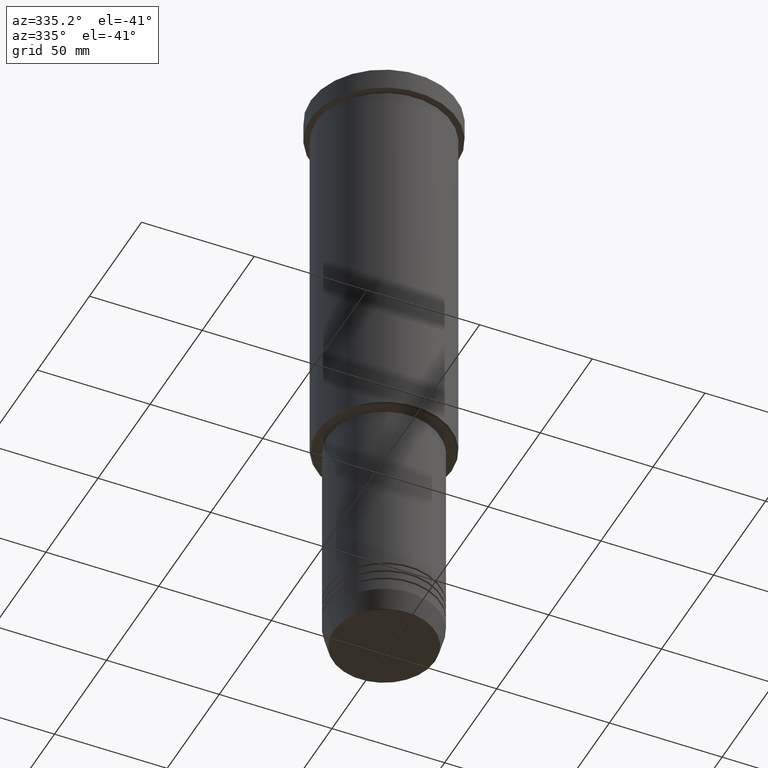
[diagram: clean part render]
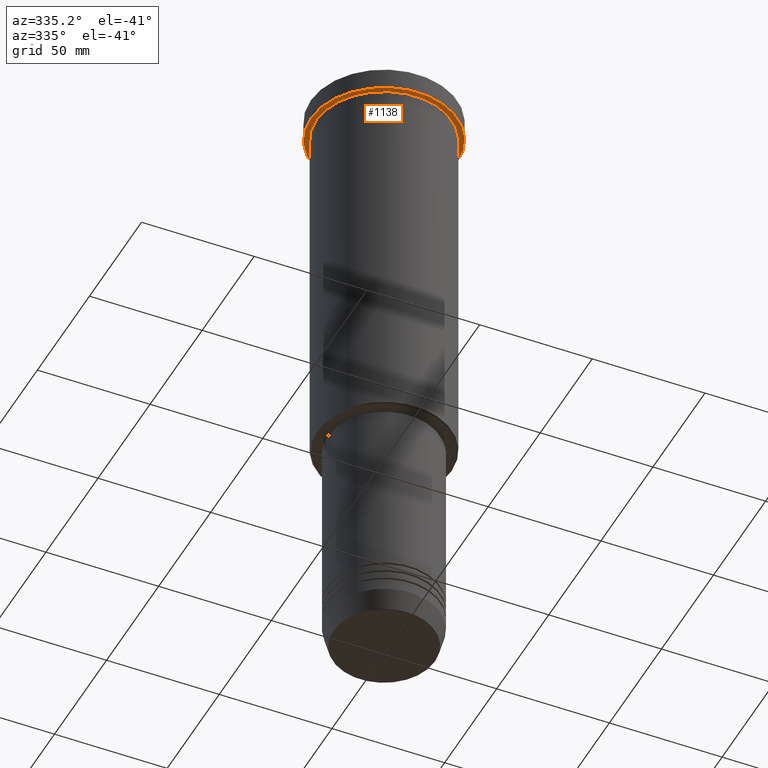
[diagram: same view with one face highlighted and labeled with its STEP entity id]
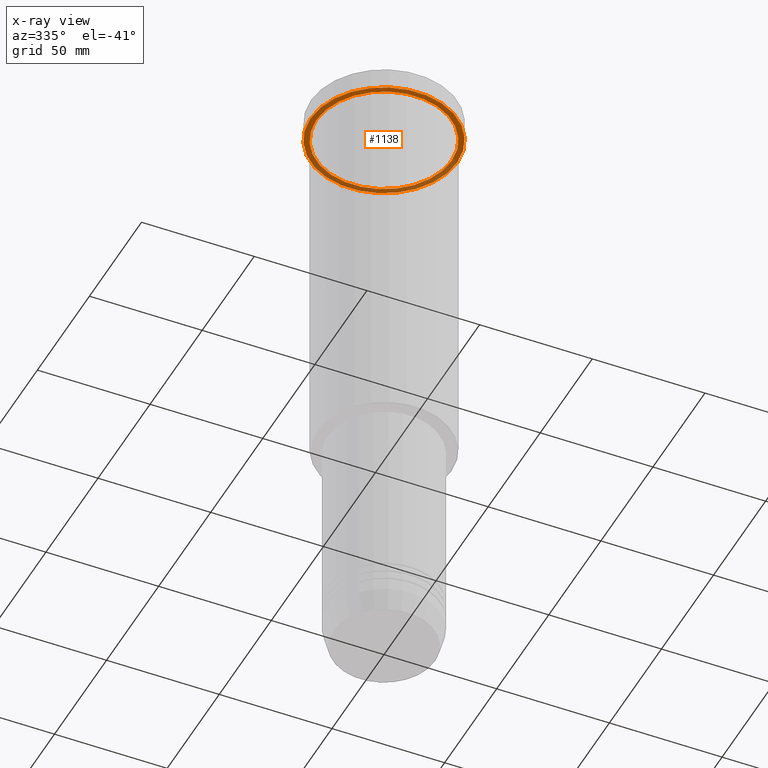
[diagram: x-ray of the same camera — body ghosted, the highlighted face saturated]
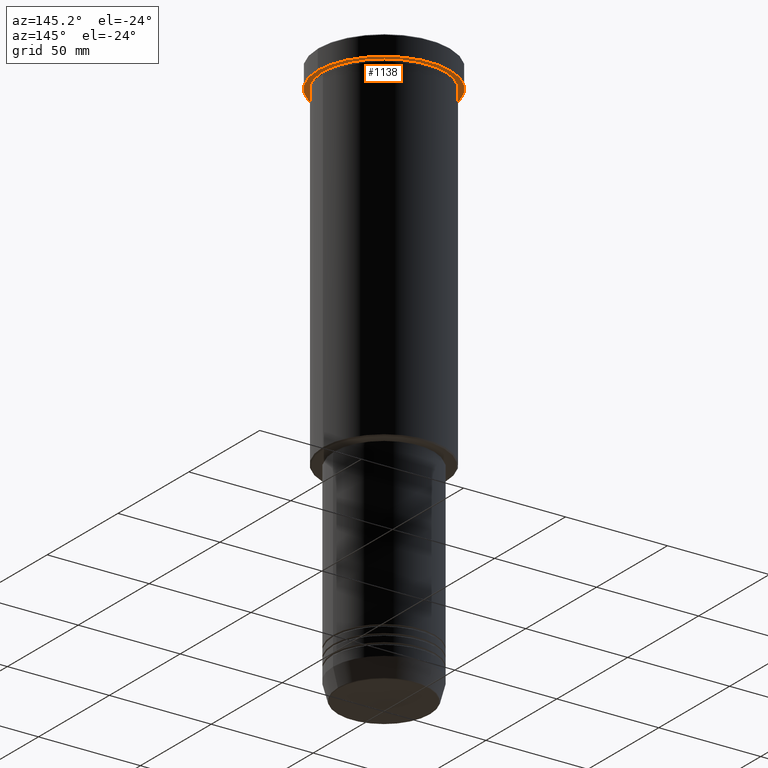
[diagram: same view with one face highlighted and labeled with its STEP entity id]
A machine part, auxiliary view. The second image highlights one B-rep face of the part: STEP entity #1138.
The next image is the same camera in x-ray: the body ghosted, the highlighted face saturated — about 37% of this face is hidden behind the body in this view.
A second angle (auxiliary view) of the same face is appended — the face is thin or edge-on in the first view.
In plain terms, the highlighted planar face has unit normal (0, 0, -1).
Its self-contained STEP definition (entity closure, byte-faithful):
#79 = CIRCLE ( 'NONE', #330, 32.50000000000000000 ) ;
#81 = EDGE_LOOP ( 'NONE', ( #456, #802 ) ) ;
#88 = VERTEX_POINT ( 'NONE', #1025 ) ;
#100 = DIRECTION ( 'NONE',  ( 1.000000000000000000, 0.000000000000000000, 0.000000000000000000 ) ) ;
#108 = CARTESIAN_POINT ( 'NONE',  ( -30.00000000000000000, 0.000000000000000000, -9.999999999999992895 ) ) ;
#130 = PLANE ( 'NONE',  #799 ) ;
#174 = EDGE_LOOP ( 'NONE', ( #913, #652 ) ) ;
#235 = DIRECTION ( 'NONE',  ( -0.000000000000000000, -0.000000000000000000, 1.000000000000000000 ) ) ;
#280 = DIRECTION ( 'NONE',  ( -0.000000000000000000, -0.000000000000000000, 1.000000000000000000 ) ) ;
#330 = AXIS2_PLACEMENT_3D ( 'NONE', #1106, #587, #943 ) ;
#356 = VERTEX_POINT ( 'NONE', #870 ) ;
#388 = CARTESIAN_POINT ( 'NONE',  ( 32.50000000000000000, 0.000000000000000000, -9.999999999999992895 ) ) ;
#400 = EDGE_CURVE ( 'NONE', #88, #718, #1157, .T. ) ;
#456 = ORIENTED_EDGE ( 'NONE', *, *, #1097, .T. ) ;
#489 = CIRCLE ( 'NONE', #1012, 32.50000000000000000 ) ;
#587 = DIRECTION ( 'NONE',  ( -0.000000000000000000, -0.000000000000000000, 1.000000000000000000 ) ) ;
#588 = DIRECTION ( 'NONE',  ( 0.000000000000000000, 0.000000000000000000, -1.000000000000000000 ) ) ;
#593 = FACE_BOUND ( 'NONE', #81, .T. ) ;
#645 = AXIS2_PLACEMENT_3D ( 'NONE', #801, #235, #1144 ) ;
#652 = ORIENTED_EDGE ( 'NONE', *, *, #963, .F. ) ;
#671 = CARTESIAN_POINT ( 'NONE',  ( 0.000000000000000000, 0.000000000000000000, -9.999999999999992895 ) ) ;
#706 = EDGE_CURVE ( 'NONE', #1031, #356, #79, .T. ) ;
#718 = VERTEX_POINT ( 'NONE', #108 ) ;
#740 = AXIS2_PLACEMENT_3D ( 'NONE', #671, #1024, #1038 ) ;
#754 = CARTESIAN_POINT ( 'NONE',  ( 0.000000000000000000, 0.000000000000000000, -9.999999999999992895 ) ) ;
#799 = AXIS2_PLACEMENT_3D ( 'NONE', #1122, #588, #1142 ) ;
#801 = CARTESIAN_POINT ( 'NONE',  ( 0.000000000000000000, 0.000000000000000000, -9.999999999999992895 ) ) ;
#802 = ORIENTED_EDGE ( 'NONE', *, *, #400, .T. ) ;
#870 = CARTESIAN_POINT ( 'NONE',  ( -32.50000000000000000, 3.980102097228898626E-15, -9.999999999999992895 ) ) ;
#913 = ORIENTED_EDGE ( 'NONE', *, *, #706, .F. ) ;
#943 = DIRECTION ( 'NONE',  ( 1.000000000000000000, 0.000000000000000000, 0.000000000000000000 ) ) ;
#953 = FACE_OUTER_BOUND ( 'NONE', #174, .T. ) ;
#963 = EDGE_CURVE ( 'NONE', #356, #1031, #489, .T. ) ;
#1012 = AXIS2_PLACEMENT_3D ( 'NONE', #754, #280, #100 ) ;
#1013 = CIRCLE ( 'NONE', #740, 30.00000000000000000 ) ;
#1024 = DIRECTION ( 'NONE',  ( -0.000000000000000000, -0.000000000000000000, 1.000000000000000000 ) ) ;
#1025 = CARTESIAN_POINT ( 'NONE',  ( 30.00000000000000000, 3.673940397442059178E-15, -9.999999999999992895 ) ) ;
#1031 = VERTEX_POINT ( 'NONE', #388 ) ;
#1038 = DIRECTION ( 'NONE',  ( -1.000000000000000000, 0.000000000000000000, 0.000000000000000000 ) ) ;
#1097 = EDGE_CURVE ( 'NONE', #718, #88, #1013, .T. ) ;
#1106 = CARTESIAN_POINT ( 'NONE',  ( 0.000000000000000000, 0.000000000000000000, -9.999999999999992895 ) ) ;
#1122 = CARTESIAN_POINT ( 'NONE',  ( 0.000000000000000000, 32.50000000000000000, -9.999999999999992895 ) ) ;
#1138 = ADVANCED_FACE ( 'NONE', ( #593, #953 ), #130, .T. ) ;
#1142 = DIRECTION ( 'NONE',  ( -1.000000000000000000, 0.000000000000000000, -0.000000000000000000 ) ) ;
#1144 = DIRECTION ( 'NONE',  ( -1.000000000000000000, 0.000000000000000000, 0.000000000000000000 ) ) ;
#1157 = CIRCLE ( 'NONE', #645, 30.00000000000000000 ) ;